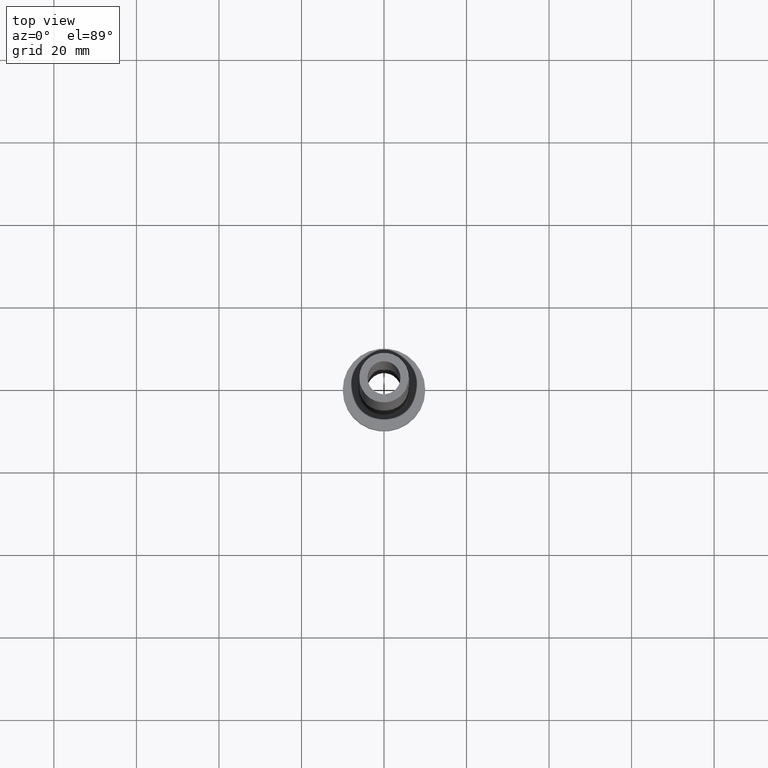
[diagram: clean part render]
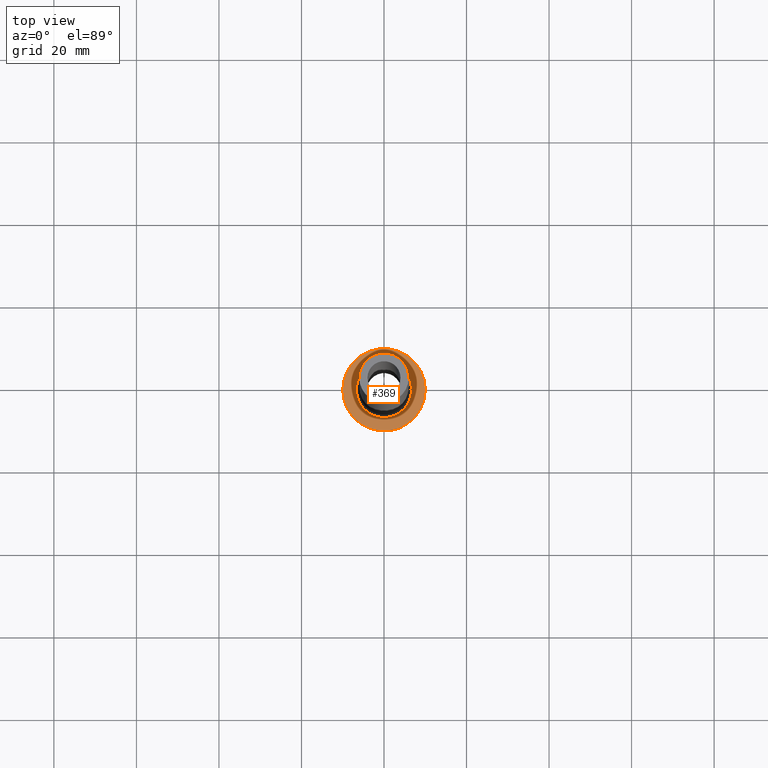
[diagram: same view with one face highlighted and labeled with its STEP entity id]
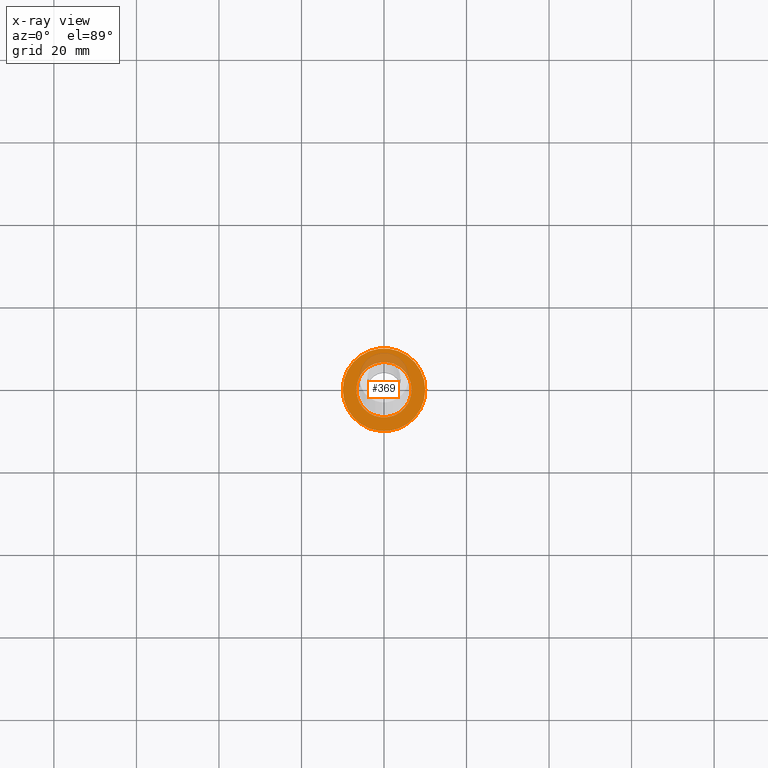
[diagram: x-ray of the same camera — body ghosted, the highlighted face saturated]
A machine part, top view. The second image highlights one B-rep face of the part: STEP entity #369.
The next image is the same camera in x-ray: the body ghosted, the highlighted face saturated — about 14% of this face is hidden behind the body in this view.
In plain terms, the highlighted planar face has unit normal (0, 0, 1).
Its self-contained STEP definition (entity closure, byte-faithful):
#13 = CARTESIAN_POINT ( 'NONE',  ( -10.00000000000000000, 0.000000000000000000, 7.000000000000000000 ) ) ;
#15 = ORIENTED_EDGE ( 'NONE', *, *, #189, .T. ) ;
#26 = FACE_OUTER_BOUND ( 'NONE', #312, .T. ) ;
#33 = AXIS2_PLACEMENT_3D ( 'NONE', #35, #169, #137 ) ;
#35 = CARTESIAN_POINT ( 'NONE',  ( 0.000000000000000000, 0.000000000000000000, 7.000000000000000000 ) ) ;
#36 = VERTEX_POINT ( 'NONE', #400 ) ;
#54 = DIRECTION ( 'NONE',  ( 1.000000000000000000, 0.000000000000000000, 0.000000000000000000 ) ) ;
#66 = AXIS2_PLACEMENT_3D ( 'NONE', #455, #129, #418 ) ;
#90 = EDGE_CURVE ( 'NONE', #458, #179, #334, .T. ) ;
#92 = CARTESIAN_POINT ( 'NONE',  ( 0.000000000000000000, 0.000000000000000000, 7.000000000000000000 ) ) ;
#106 = ORIENTED_EDGE ( 'NONE', *, *, #335, .T. ) ;
#129 = DIRECTION ( 'NONE',  ( 0.000000000000000000, 0.000000000000000000, 1.000000000000000000 ) ) ;
#137 = DIRECTION ( 'NONE',  ( 1.000000000000000000, 0.000000000000000000, 0.000000000000000000 ) ) ;
#142 = AXIS2_PLACEMENT_3D ( 'NONE', #236, #373, #54 ) ;
#161 = CARTESIAN_POINT ( 'NONE',  ( 10.00000000000000000, 1.224646799147353256E-15, 7.000000000000000000 ) ) ;
#168 = PLANE ( 'NONE',  #66 ) ;
#169 = DIRECTION ( 'NONE',  ( -0.000000000000000000, -0.000000000000000000, -1.000000000000000000 ) ) ;
#172 = DIRECTION ( 'NONE',  ( 0.000000000000000000, 0.000000000000000000, 1.000000000000000000 ) ) ;
#179 = VERTEX_POINT ( 'NONE', #161 ) ;
#189 = EDGE_CURVE ( 'NONE', #36, #379, #435, .T. ) ;
#202 = FACE_BOUND ( 'NONE', #298, .T. ) ;
#221 = CIRCLE ( 'NONE', #338, 10.00000000000000000 ) ;
#236 = CARTESIAN_POINT ( 'NONE',  ( 0.000000000000000000, 0.000000000000000000, 7.000000000000000000 ) ) ;
#273 = DIRECTION ( 'NONE',  ( 0.000000000000000000, 0.000000000000000000, 1.000000000000000000 ) ) ;
#281 = CIRCLE ( 'NONE', #33, 6.700000000000001066 ) ;
#296 = ORIENTED_EDGE ( 'NONE', *, *, #90, .T. ) ;
#297 = CARTESIAN_POINT ( 'NONE',  ( 6.700000000000001066, 0.000000000000000000, 7.000000000000006217 ) ) ;
#298 = EDGE_LOOP ( 'NONE', ( #106, #15 ) ) ;
#307 = EDGE_CURVE ( 'NONE', #179, #458, #221, .T. ) ;
#312 = EDGE_LOOP ( 'NONE', ( #296, #314 ) ) ;
#314 = ORIENTED_EDGE ( 'NONE', *, *, #307, .T. ) ;
#334 = CIRCLE ( 'NONE', #394, 10.00000000000000000 ) ;
#335 = EDGE_CURVE ( 'NONE', #379, #36, #281, .T. ) ;
#338 = AXIS2_PLACEMENT_3D ( 'NONE', #92, #172, #381 ) ;
#369 = ADVANCED_FACE ( 'NONE', ( #202, #26 ), #168, .T. ) ;
#373 = DIRECTION ( 'NONE',  ( -0.000000000000000000, -0.000000000000000000, -1.000000000000000000 ) ) ;
#379 = VERTEX_POINT ( 'NONE', #297 ) ;
#381 = DIRECTION ( 'NONE',  ( 1.000000000000000000, 0.000000000000000000, 0.000000000000000000 ) ) ;
#394 = AXIS2_PLACEMENT_3D ( 'NONE', #450, #273, #447 ) ;
#400 = CARTESIAN_POINT ( 'NONE',  ( -6.700000000000001066, 8.205133554287267548E-16, 7.000000000000006217 ) ) ;
#418 = DIRECTION ( 'NONE',  ( 1.000000000000000000, 0.000000000000000000, -0.000000000000000000 ) ) ;
#435 = CIRCLE ( 'NONE', #142, 6.700000000000001066 ) ;
#447 = DIRECTION ( 'NONE',  ( 1.000000000000000000, 0.000000000000000000, 0.000000000000000000 ) ) ;
#450 = CARTESIAN_POINT ( 'NONE',  ( 0.000000000000000000, 0.000000000000000000, 7.000000000000000000 ) ) ;
#455 = CARTESIAN_POINT ( 'NONE',  ( 0.000000000000000000, 0.000000000000000000, 7.000000000000000000 ) ) ;
#458 = VERTEX_POINT ( 'NONE', #13 ) ;